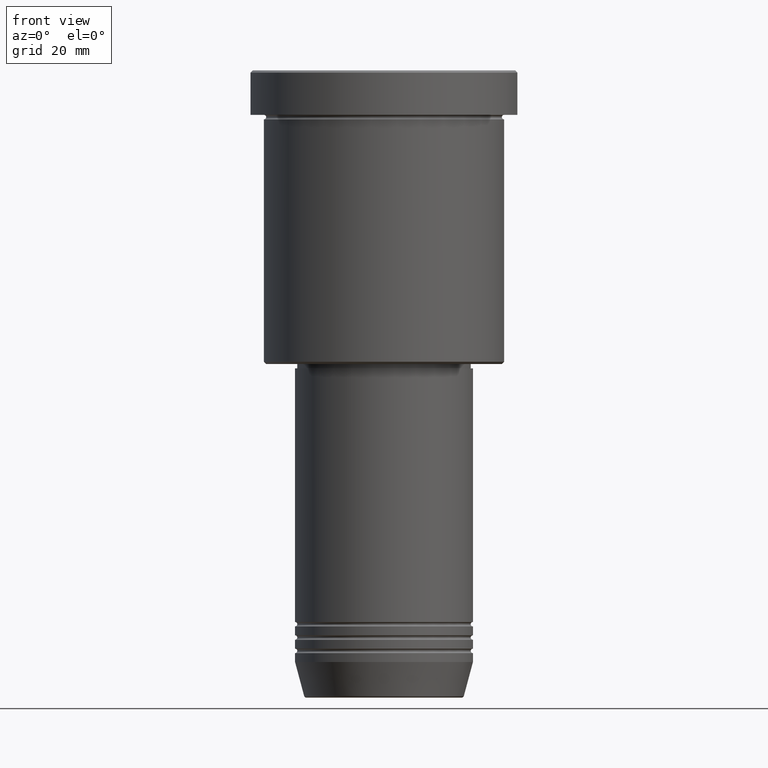
[diagram: clean part render]
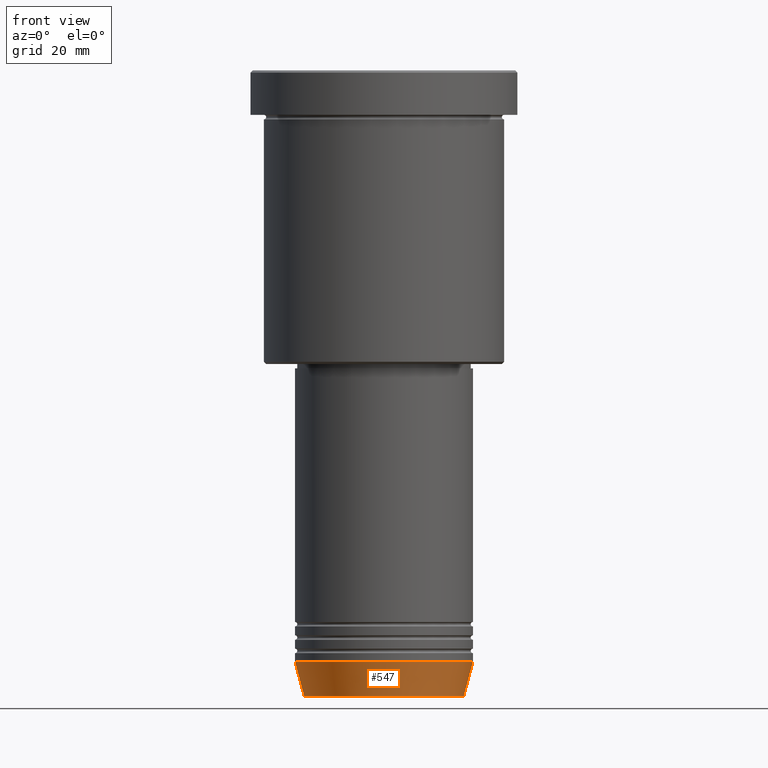
[diagram: same view with one face highlighted and labeled with its STEP entity id]
A machine part, front view. The second image highlights one B-rep face of the part: STEP entity #547.
In plain terms, the highlighted conical surface has half-angle 15 deg.
Its self-contained STEP definition (entity closure, byte-faithful):
#12 = CARTESIAN_POINT ( 'NONE',  ( 20.00000000000000000, 0.000000000000000000, -133.0000000000000000 ) ) ;
#17 = LINE ( 'NONE', #12, #1096 ) ;
#78 = FACE_OUTER_BOUND ( 'NONE', #583, .T. ) ;
#86 = DIRECTION ( 'NONE',  ( -0.000000000000000000, -0.000000000000000000, 1.000000000000000000 ) ) ;
#87 = ORIENTED_EDGE ( 'NONE', *, *, #133, .F. ) ;
#128 = ORIENTED_EDGE ( 'NONE', *, *, #761, .T. ) ;
#133 = EDGE_CURVE ( 'NONE', #525, #163, #1128, .T. ) ;
#151 = CARTESIAN_POINT ( 'NONE',  ( 0.000000000000000000, 0.000000000000000000, -133.0000000000000000 ) ) ;
#163 = VERTEX_POINT ( 'NONE', #1142 ) ;
#188 = DIRECTION ( 'NONE',  ( -0.000000000000000000, -0.000000000000000000, 1.000000000000000000 ) ) ;
#208 = EDGE_CURVE ( 'NONE', #652, #221, #960, .T. ) ;
#221 = VERTEX_POINT ( 'NONE', #920 ) ;
#321 = VECTOR ( 'NONE', #804, 1000.000000000000114 ) ;
#336 = CARTESIAN_POINT ( 'NONE',  ( 0.000000000000000000, 0.000000000000000000, -140.6294095225512706 ) ) ;
#337 = LINE ( 'NONE', #535, #321 ) ;
#376 = AXIS2_PLACEMENT_3D ( 'NONE', #151, #792, #702 ) ;
#525 = VERTEX_POINT ( 'NONE', #599 ) ;
#535 = CARTESIAN_POINT ( 'NONE',  ( -20.00000000000000000, 2.449293598294706513E-15, -133.0000000000000000 ) ) ;
#538 = AXIS2_PLACEMENT_3D ( 'NONE', #336, #188, #642 ) ;
#541 = CARTESIAN_POINT ( 'NONE',  ( -17.95570587970606269, 2.324116685748020582E-15, -140.6294095225512706 ) ) ;
#547 = ADVANCED_FACE ( 'NONE', ( #78 ), #1073, .T. ) ;
#583 = EDGE_LOOP ( 'NONE', ( #912, #722, #128, #87 ) ) ;
#599 = CARTESIAN_POINT ( 'NONE',  ( -20.00000000000000000, 2.449293598294706513E-15, -133.0000000000000000 ) ) ;
#642 = DIRECTION ( 'NONE',  ( 1.000000000000000000, 0.000000000000000000, 0.000000000000000000 ) ) ;
#643 = CARTESIAN_POINT ( 'NONE',  ( 0.000000000000000000, 0.000000000000000000, -133.0000000000000000 ) ) ;
#646 = EDGE_CURVE ( 'NONE', #652, #525, #337, .T. ) ;
#652 = VERTEX_POINT ( 'NONE', #541 ) ;
#702 = DIRECTION ( 'NONE',  ( 1.000000000000000000, 0.000000000000000000, 0.000000000000000000 ) ) ;
#718 = DIRECTION ( 'NONE',  ( 1.000000000000000000, 0.000000000000000000, 0.000000000000000000 ) ) ;
#722 = ORIENTED_EDGE ( 'NONE', *, *, #208, .T. ) ;
#761 = EDGE_CURVE ( 'NONE', #221, #163, #17, .T. ) ;
#792 = DIRECTION ( 'NONE',  ( -0.000000000000000000, -0.000000000000000000, 1.000000000000000000 ) ) ;
#804 = DIRECTION ( 'NONE',  ( -0.2588190451025212391, 3.169619151431771721E-17, 0.9659258262890680902 ) ) ;
#912 = ORIENTED_EDGE ( 'NONE', *, *, #646, .F. ) ;
#920 = CARTESIAN_POINT ( 'NONE',  ( 17.95570587970606269, 0.000000000000000000, -140.6294095225512706 ) ) ;
#960 = CIRCLE ( 'NONE', #538, 17.95570587970606269 ) ;
#978 = AXIS2_PLACEMENT_3D ( 'NONE', #643, #86, #718 ) ;
#1073 = CONICAL_SURFACE ( 'NONE', #978, 20.00000000000000000, 0.2617993877991499629 ) ;
#1096 = VECTOR ( 'NONE', #1118, 1000.000000000000114 ) ;
#1118 = DIRECTION ( 'NONE',  ( 0.2588190451025212391, 0.000000000000000000, 0.9659258262890680902 ) ) ;
#1128 = CIRCLE ( 'NONE', #376, 20.00000000000000000 ) ;
#1142 = CARTESIAN_POINT ( 'NONE',  ( 20.00000000000000000, 0.000000000000000000, -133.0000000000000000 ) ) ;